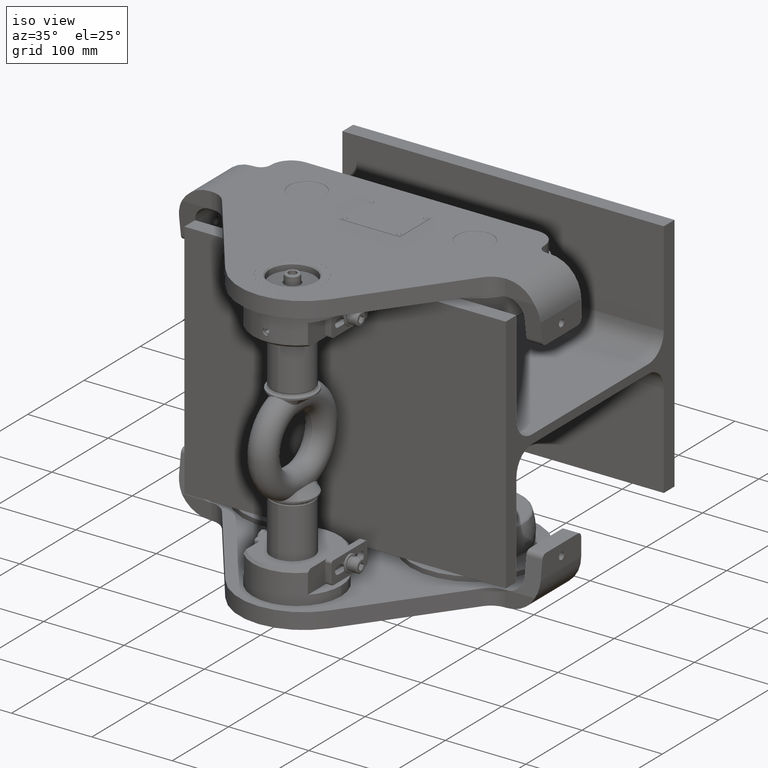
[diagram: clean part render]
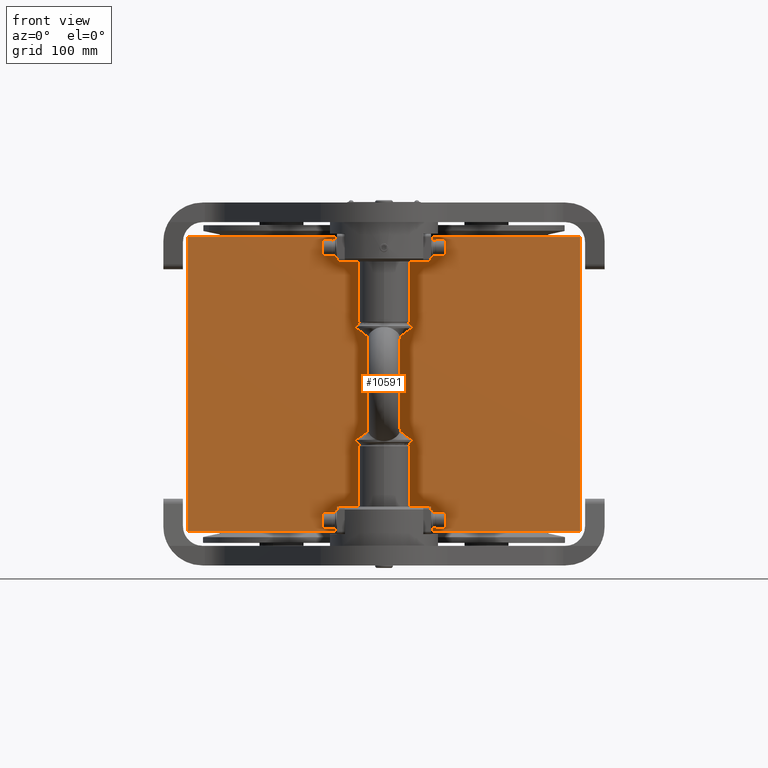
[diagram: tour spotlight — one face highlighted and labeled with its STEP entity id]
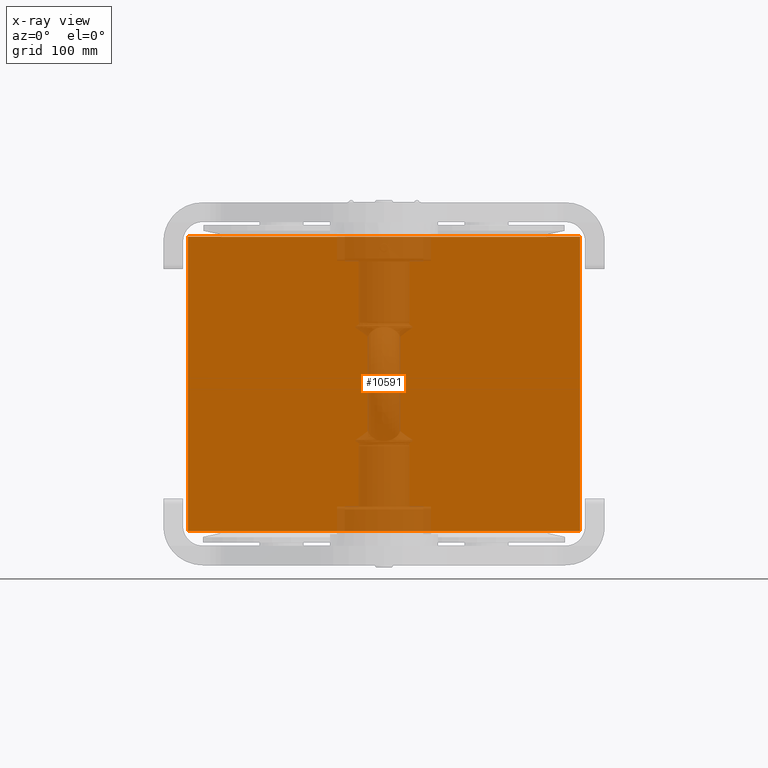
[diagram: x-ray of the same camera — body ghosted, this tour face saturated]
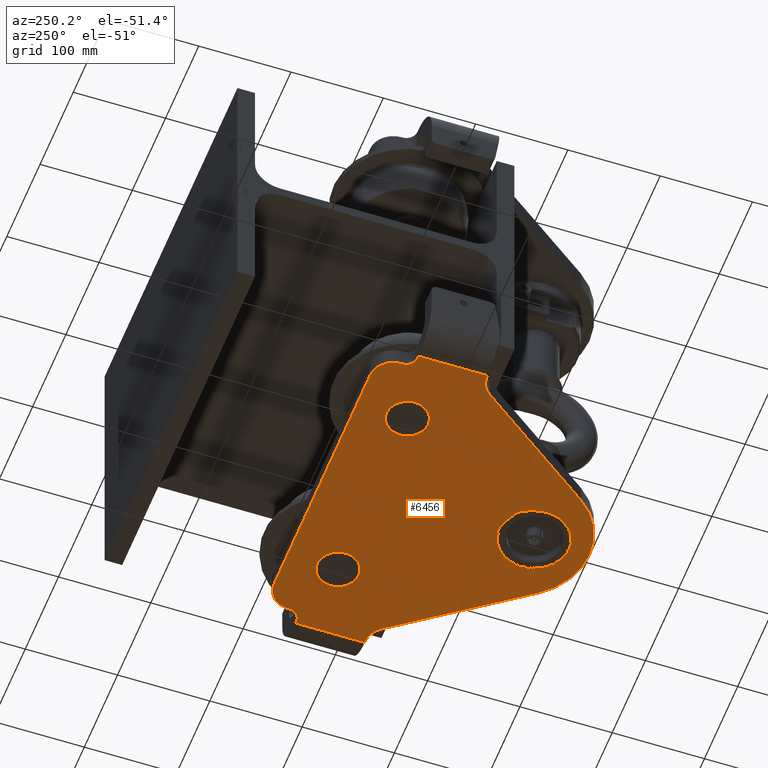
[diagram: tour spotlight — one face highlighted and labeled with its STEP entity id]
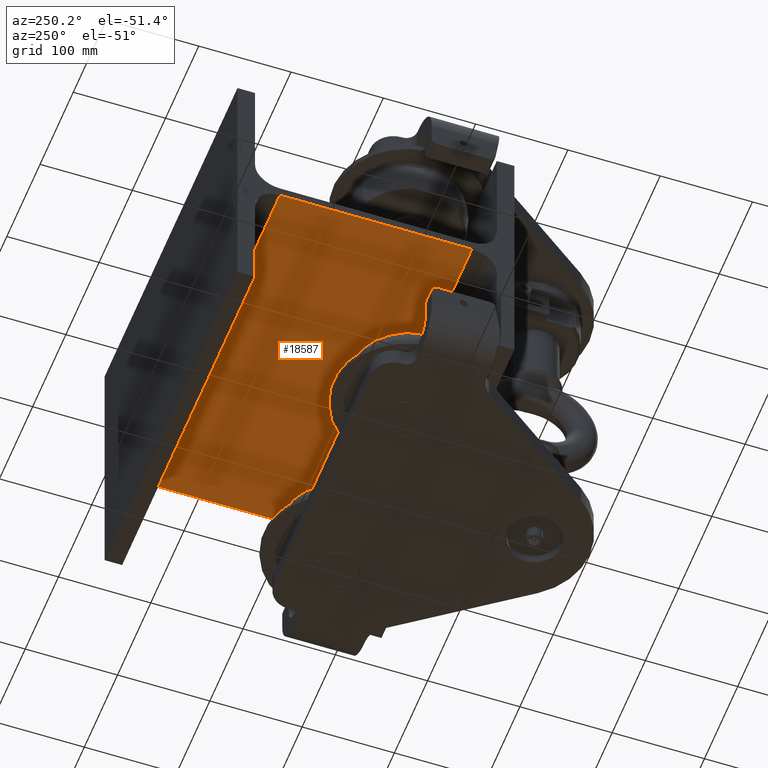
[diagram: tour spotlight — one face highlighted and labeled with its STEP entity id]
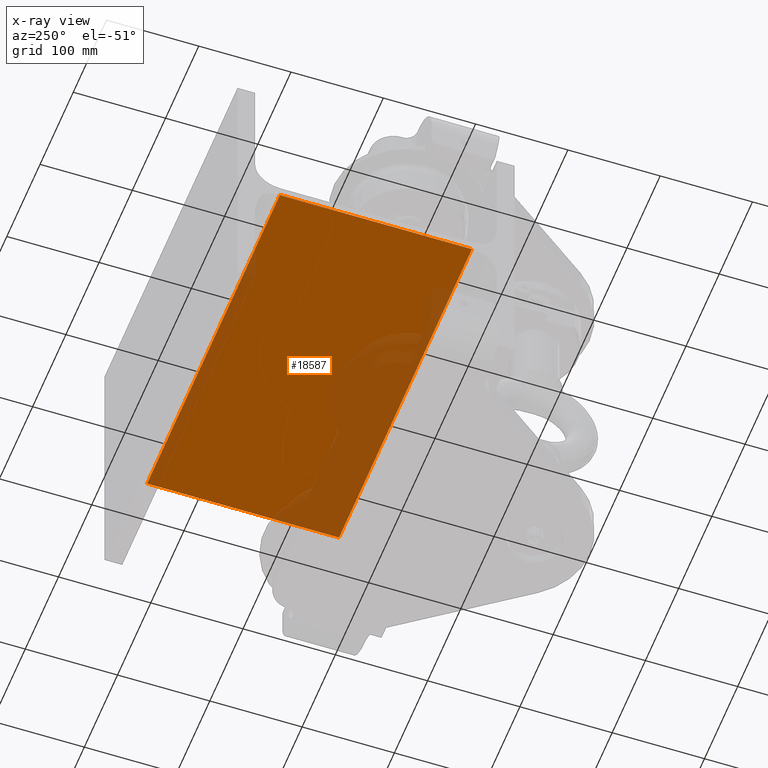
[diagram: x-ray of the same camera — body ghosted, this tour face saturated]
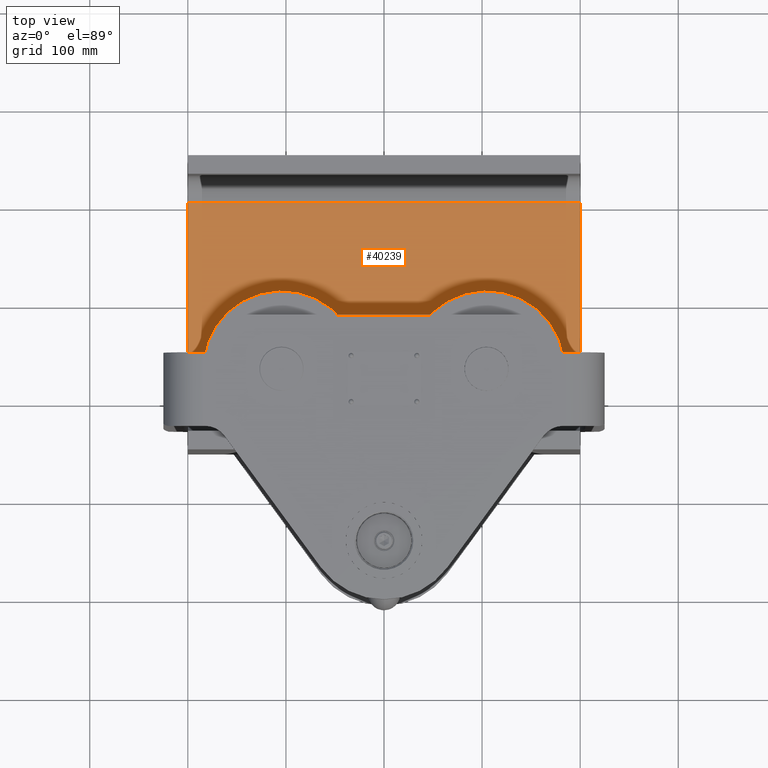
[diagram: tour spotlight — one face highlighted and labeled with its STEP entity id]
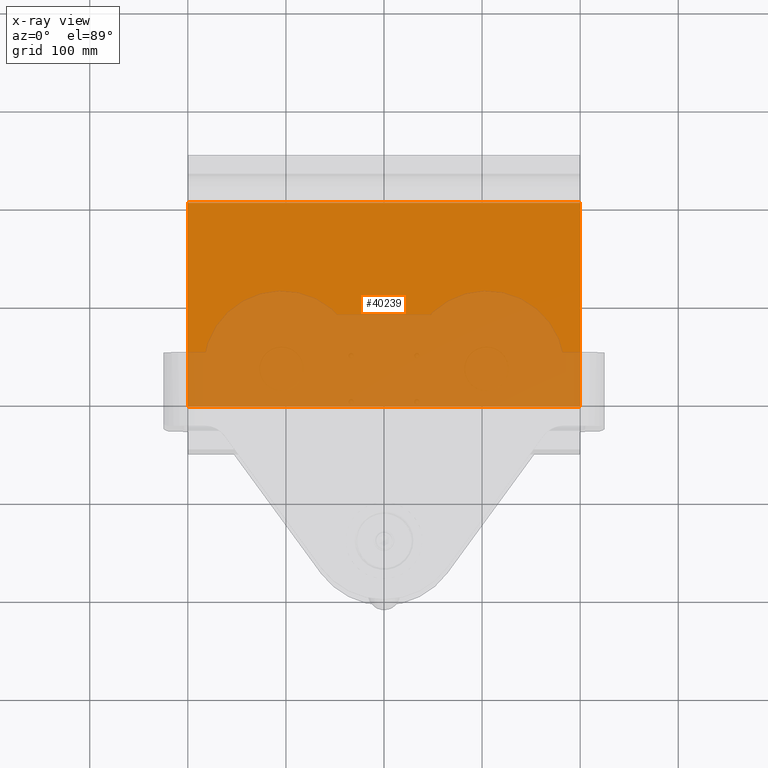
[diagram: x-ray of the same camera — body ghosted, this tour face saturated]
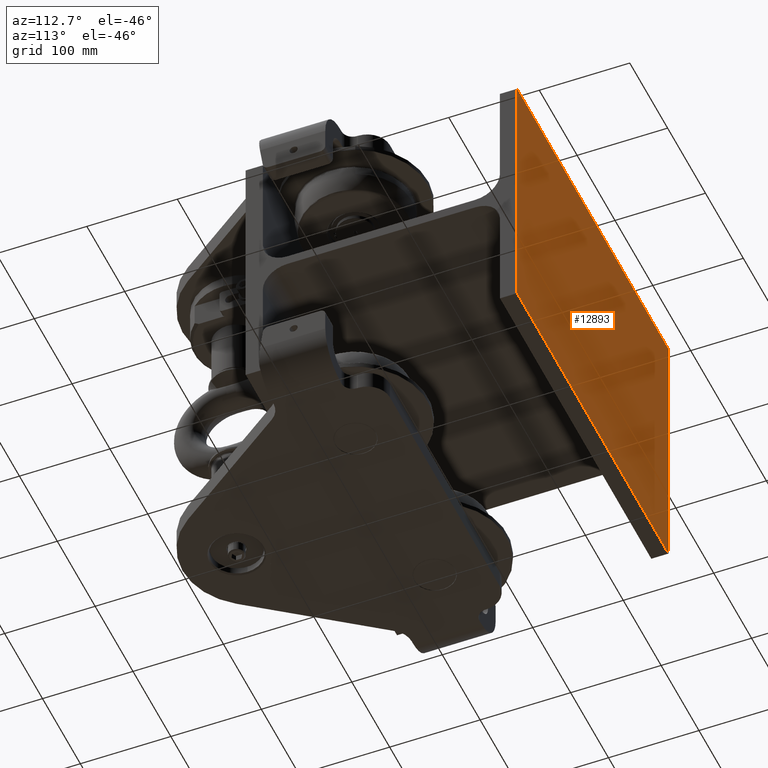
[diagram: tour spotlight — one face highlighted and labeled with its STEP entity id]
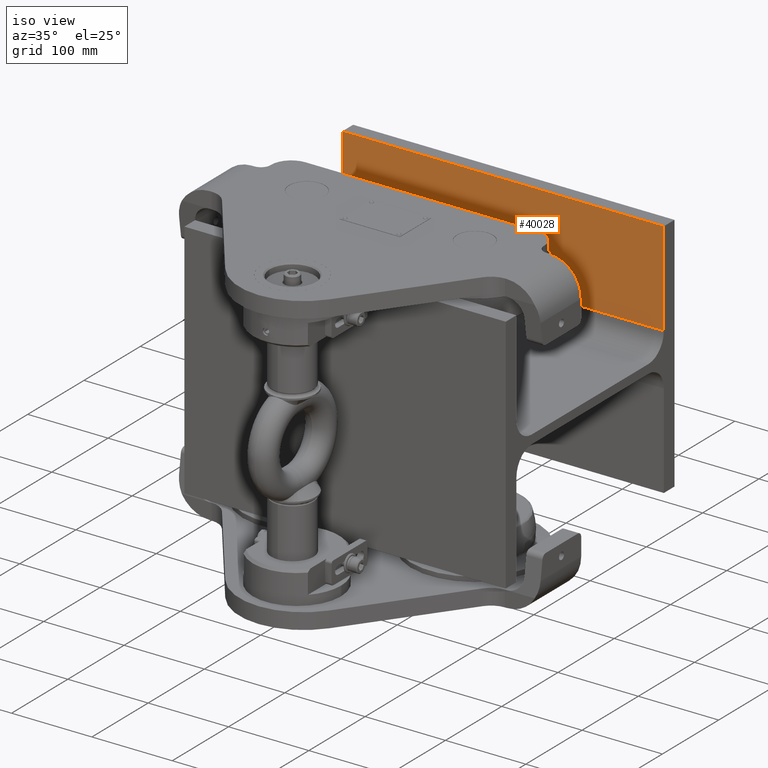
[diagram: tour spotlight — one face highlighted and labeled with its STEP entity id]
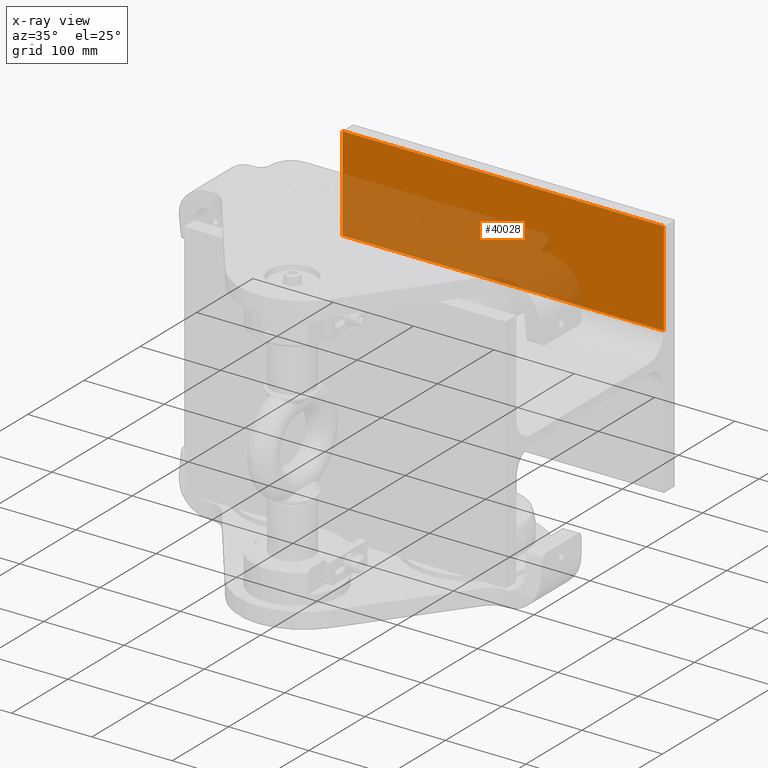
[diagram: x-ray of the same camera — body ghosted, this tour face saturated]
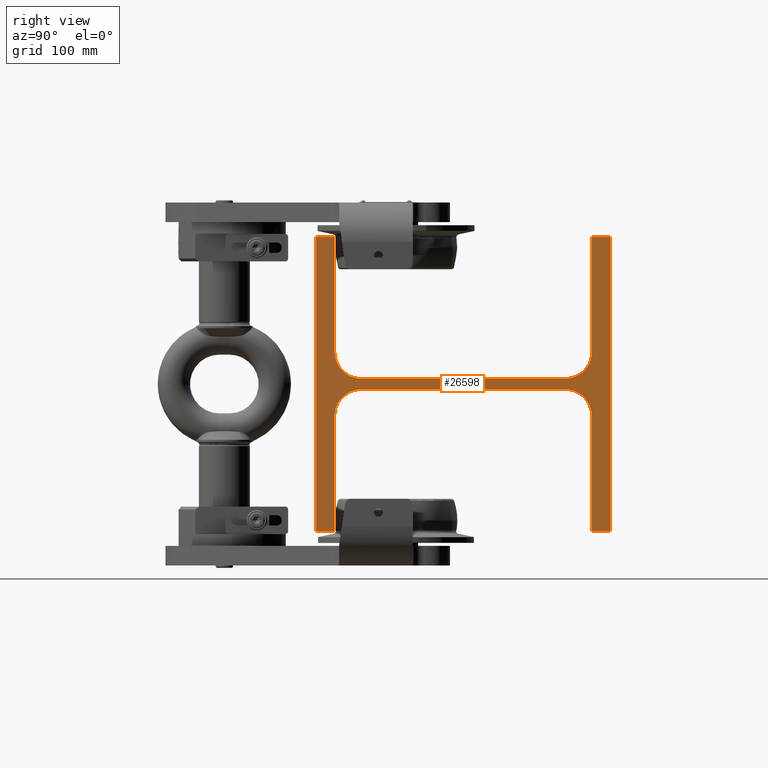
[diagram: tour spotlight — one face highlighted and labeled with its STEP entity id]
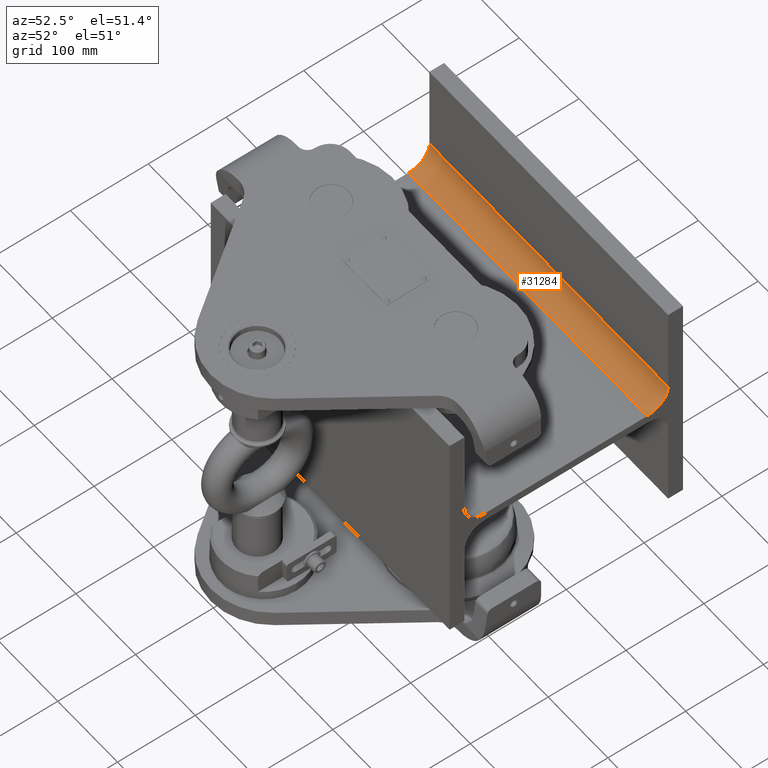
[diagram: tour spotlight — one face highlighted and labeled with its STEP entity id]
A machine part: a face-by-face anatomy tour. The part has 1200 B-rep faces; the first image is the clean iso view, then the 8 largest visible faces are spotlighted one at a time (largest first), each with its STEP entity span.

Face 1 — front view, entity #10591. An x-ray twin of the same camera follows (body ghosted, this face saturated) — the face is partly hidden behind the body. In plain terms, the highlighted planar face has unit normal (0, -1, 0).
Definition (entity closure, byte-faithful):
#1184 = CARTESIAN_POINT ( 'NONE',  ( -199.9999999999999700, -150.0000000000000000, 150.0000000000000600 ) ) ;
#4802 = VECTOR ( 'NONE', #15495, 1000.000000000000000 ) ;
#5733 = EDGE_CURVE ( 'NONE', #8998, #49530, #9923, .T. ) ;
#8998 = VERTEX_POINT ( 'NONE', #1184 ) ;
#9923 = LINE ( 'NONE', #32184, #4802 ) ;
#10591 = ADVANCED_FACE ( 'NONE', ( #18738 ), #14495, .T. ) ;
#11224 = EDGE_CURVE ( 'NONE', #12805, #37312, #23768, .T. ) ;
#12805 = VERTEX_POINT ( 'NONE', #24177 ) ;
#14495 = PLANE ( 'NONE',  #48248 ) ;
#15495 = DIRECTION ( 'NONE',  ( 1.000000000000000000, 1.110223024625156300E-016, -5.551115123125782700E-017 ) ) ;
#15897 = DIRECTION ( 'NONE',  ( 1.110223024625156400E-016, -1.000000000000000000, 2.329890535377840800E-016 ) ) ;
#17506 = EDGE_CURVE ( 'NONE', #49530, #37312, #20366, .T. ) ;
#17948 = CARTESIAN_POINT ( 'NONE',  ( 200.0000000000000300, -149.9999999999999400, 150.0000000000000300 ) ) ;
#18002 = VECTOR ( 'NONE', #48784, 1000.000000000000000 ) ;
#18738 = FACE_OUTER_BOUND ( 'NONE', #30525, .T. ) ;
#20150 = CARTESIAN_POINT ( 'NONE',  ( -199.9999999999999700, -150.0000000000001100, -149.9999999999999400 ) ) ;
#20366 = LINE ( 'NONE', #30289, #24250 ) ;
#23142 = VECTOR ( 'NONE', #51765, 1000.000000000000000 ) ;
#23768 = LINE ( 'NONE', #20150, #18002 ) ;
#24177 = CARTESIAN_POINT ( 'NONE',  ( -199.9999999999999700, -150.0000000000001100, -149.9999999999999400 ) ) ;
#24250 = VECTOR ( 'NONE', #50652, 1000.000000000000000 ) ;
#25110 = ORIENTED_EDGE ( 'NONE', *, *, #44870, .T. ) ;
#25839 = CARTESIAN_POINT ( 'NONE',  ( -199.9999999999999700, -150.0000000000000000, 150.0000000000000600 ) ) ;
#28155 = DIRECTION ( 'NONE',  ( 1.000000000000000000, 1.110223024625156300E-016, -5.551115123125782700E-017 ) ) ;
#29883 = ORIENTED_EDGE ( 'NONE', *, *, #5733, .F. ) ;
#30289 = CARTESIAN_POINT ( 'NONE',  ( 200.0000000000000300, -149.9999999999999400, 150.0000000000000300 ) ) ;
#30525 = EDGE_LOOP ( 'NONE', ( #30735, #29883, #25110, #35399 ) ) ;
#30735 = ORIENTED_EDGE ( 'NONE', *, *, #17506, .F. ) ;
#32184 = CARTESIAN_POINT ( 'NONE',  ( -199.9999999999999700, -150.0000000000000000, 150.0000000000000600 ) ) ;
#32211 = CARTESIAN_POINT ( 'NONE',  ( -199.9999999999999700, -150.0000000000000000, 150.0000000000000600 ) ) ;
#33940 = LINE ( 'NONE', #25839, #23142 ) ;
#35399 = ORIENTED_EDGE ( 'NONE', *, *, #11224, .T. ) ;
#36827 = CARTESIAN_POINT ( 'NONE',  ( 200.0000000000000300, -150.0000000000000600, -149.9999999999999700 ) ) ;
#37312 = VERTEX_POINT ( 'NONE', #36827 ) ;
#44870 = EDGE_CURVE ( 'NONE', #8998, #12805, #33940, .T. ) ;
#48248 = AXIS2_PLACEMENT_3D ( 'NONE', #32211, #15897, #28155 ) ;
#48784 = DIRECTION ( 'NONE',  ( 1.000000000000000000, 1.110223024625156300E-016, -5.551115123125782700E-017 ) ) ;
#49530 = VERTEX_POINT ( 'NONE', #17948 ) ;
#50652 = DIRECTION ( 'NONE',  ( -8.517613539294333000E-018, -2.179890634030890900E-016, -1.000000000000000000 ) ) ;
#51765 = DIRECTION ( 'NONE',  ( -8.517613539294333000E-018, -2.179890634030890900E-016, -1.000000000000000000 ) ) ;

Face 2 — auxiliary view, entity #6456. In plain terms, the highlighted planar face has unit normal (-0, 0, -1).
Definition (entity closure, byte-faithful):
#345 = CARTESIAN_POINT ( 'NONE',  ( -2.300539975363998500E-016, -243.5000000000000600, -184.9999999999999100 ) ) ;
#595 = CARTESIAN_POINT ( 'NONE',  ( 104.5000000000000300, -91.00000000000007100, -184.9999999999999400 ) ) ;
#782 = ORIENTED_EDGE ( 'NONE', *, *, #30836, .F. ) ;
#832 = CARTESIAN_POINT ( 'NONE',  ( -145.0000000000000600, -38.50000000000001400, -184.9999999999999100 ) ) ;
#2429 = CIRCLE ( 'NONE', #40806, 25.00000000000000000 ) ;
#2460 = VECTOR ( 'NONE', #29232, 1000.000000000000000 ) ;
#2991 = DIRECTION ( 'NONE',  ( 0.0000000000000000000, -1.000000000000000000, 0.0000000000000000000 ) ) ;
#3377 = CIRCLE ( 'NONE', #25357, 37.50000000000000700 ) ;
#3511 = VECTOR ( 'NONE', #50730, 1000.000000000000000 ) ;
#4059 = CIRCLE ( 'NONE', #42151, 80.00000000000001400 ) ;
#4185 = DIRECTION ( 'NONE',  ( 0.0000000000000000000, 1.000000000000000000, 0.0000000000000000000 ) ) ;
#4392 = VERTEX_POINT ( 'NONE', #595 ) ;
#4623 = CARTESIAN_POINT ( 'NONE',  ( 170.0000000000000300, -38.50000000000000700, -184.9999999999999400 ) ) ;
#4641 = AXIS2_PLACEMENT_3D ( 'NONE', #30643, #5966, #40231 ) ;
#4774 = ORIENTED_EDGE ( 'NONE', *, *, #47511, .T. ) ;
#5538 = DIRECTION ( 'NONE',  ( -5.551115123125781500E-017, 0.0000000000000000000, -1.000000000000000000 ) ) ;
#5654 = EDGE_CURVE ( 'NONE', #45468, #20040, #23542, .T. ) ;
#5695 = ORIENTED_EDGE ( 'NONE', *, *, #20572, .T. ) ;
#5966 = DIRECTION ( 'NONE',  ( 5.551115123125781500E-017, -0.0000000000000000000, 1.000000000000000000 ) ) ;
#6456 = ADVANCED_FACE ( 'NONE', ( #39894, #9670, #9034, #40537 ), #22690, .T. ) ;
#6646 = ORIENTED_EDGE ( 'NONE', *, *, #35294, .T. ) ;
#7069 = CARTESIAN_POINT ( 'NONE',  ( 64.58471424461944800, -270.7103239338690600, -184.9999999999999400 ) ) ;
#7290 = CARTESIAN_POINT ( 'NONE',  ( 145.0000000000000600, -13.50000000000001200, -184.9999999999999400 ) ) ;
#7348 = ORIENTED_EDGE ( 'NONE', *, *, #33272, .T. ) ;
#7558 = AXIS2_PLACEMENT_3D ( 'NONE', #47455, #18818, #22996 ) ;
#7564 = ORIENTED_EDGE ( 'NONE', *, *, #30927, .T. ) ;
#7774 = AXIS2_PLACEMENT_3D ( 'NONE', #34712, #30832, #14606 ) ;
#7968 = VECTOR ( 'NONE', #16270, 1000.000000000000000 ) ;
#8115 = CARTESIAN_POINT ( 'NONE',  ( -170.0000000000000300, -38.50000000000001400, -184.9999999999999100 ) ) ;
#8436 = DIRECTION ( 'NONE',  ( 0.0000000000000000000, 1.000000000000000000, 0.0000000000000000000 ) ) ;
#8483 = ORIENTED_EDGE ( 'NONE', *, *, #15065, .T. ) ;
#8938 = VERTEX_POINT ( 'NONE', #45085 ) ;
#8959 = CIRCLE ( 'NONE', #9070, 22.49999999999999300 ) ;
#9034 = FACE_BOUND ( 'NONE', #25869, .T. ) ;
#9070 = AXIS2_PLACEMENT_3D ( 'NONE', #46247, #42433, #38598 ) ;
#9569 = EDGE_CURVE ( 'NONE', #27936, #32000, #3377, .T. ) ;
#9670 = FACE_BOUND ( 'NONE', #28527, .T. ) ;
#10168 = DIRECTION ( 'NONE',  ( -5.551115123125781500E-017, 0.0000000000000000000, -1.000000000000000000 ) ) ;
#10180 = DIRECTION ( 'NONE',  ( 5.551115123125781500E-017, -0.0000000000000000000, 1.000000000000000000 ) ) ;
#10702 = VECTOR ( 'NONE', #10931, 1000.000000000000000 ) ;
#10788 = CARTESIAN_POINT ( 'NONE',  ( -185.0000000000000300, -13.50000000000001200, -184.9999999999999100 ) ) ;
#10822 = VECTOR ( 'NONE', #33365, 1000.000000000000000 ) ;
#10931 = DIRECTION ( 'NONE',  ( 1.000000000000000000, -9.682177540335668900E-016, -5.551115123125781500E-017 ) ) ;
#11205 = DIRECTION ( 'NONE',  ( -5.551115123125781500E-017, 0.0000000000000000000, -1.000000000000000000 ) ) ;
#11567 = LINE ( 'NONE', #10788, #16127 ) ;
#12002 = EDGE_CURVE ( 'NONE', #30111, #26986, #2429, .T. ) ;
#12455 = AXIS2_PLACEMENT_3D ( 'NONE', #345, #29496, #32679 ) ;
#12784 = EDGE_CURVE ( 'NONE', #33902, #16100, #41927, .T. ) ;
#13261 = VERTEX_POINT ( 'NONE', #35754 ) ;
#14485 = LINE ( 'NONE', #35139, #3511 ) ;
#14583 = DIRECTION ( 'NONE',  ( -5.551115123125781500E-017, 0.0000000000000000000, -1.000000000000000000 ) ) ;
#14606 = DIRECTION ( 'NONE',  ( 0.0000000000000000000, 1.000000000000000000, 0.0000000000000000000 ) ) ;
#14744 = EDGE_CURVE ( 'NONE', #41833, #8938, #19349, .T. ) ;
#14749 = LINE ( 'NONE', #44416, #10822 ) ;
#15065 = EDGE_CURVE ( 'NONE', #52758, #45468, #14749, .T. ) ;
#15150 = DIRECTION ( 'NONE',  ( -1.000000000000000000, -0.0000000000000000000, 5.551115123125781500E-017 ) ) ;
#15718 = VERTEX_POINT ( 'NONE', #15966 ) ;
#15966 = CARTESIAN_POINT ( 'NONE',  ( 182.6925064427543100, -126.5000000000000300, -184.9999999999999400 ) ) ;
#16100 = VERTEX_POINT ( 'NONE', #36497 ) ;
#16127 = VECTOR ( 'NONE', #15150, 1000.000000000000000 ) ;
#16231 = DIRECTION ( 'NONE',  ( 5.551115123125781500E-017, -0.0000000000000000000, 1.000000000000000000 ) ) ;
#16270 = DIRECTION ( 'NONE',  ( 0.0000000000000000000, 1.000000000000000000, 0.0000000000000000000 ) ) ;
#16310 = VERTEX_POINT ( 'NONE', #21974 ) ;
#16854 = CARTESIAN_POINT ( 'NONE',  ( -170.0000000000000300, -39.50000000000002100, -184.9999999999999100 ) ) ;
#16862 = ORIENTED_EDGE ( 'NONE', *, *, #12002, .T. ) ;
#17393 = DIRECTION ( 'NONE',  ( -5.551115123125781500E-017, 0.0000000000000000000, -1.000000000000000000 ) ) ;
#17785 = VERTEX_POINT ( 'NONE', #26532 ) ;
#17899 = DIRECTION ( 'NONE',  ( -5.551115123125781500E-017, 0.0000000000000000000, -1.000000000000000000 ) ) ;
#17945 = ORIENTED_EDGE ( 'NONE', *, *, #28064, .F. ) ;
#18095 = VERTEX_POINT ( 'NONE', #50946 ) ;
#18239 = ORIENTED_EDGE ( 'NONE', *, *, #25781, .F. ) ;
#18272 = DIRECTION ( 'NONE',  ( -0.5901290491733639500, 0.8073089280577425700, 3.275874289462098700E-017 ) ) ;
#18749 = LINE ( 'NONE', #44275, #25817 ) ;
#18818 = DIRECTION ( 'NONE',  ( -5.551115123125781500E-017, 0.0000000000000000000, -1.000000000000000000 ) ) ;
#19009 = LINE ( 'NONE', #8115, #7968 ) ;
#19280 = DIRECTION ( 'NONE',  ( 0.0000000000000000000, -1.000000000000000000, 0.0000000000000000000 ) ) ;
#19349 = CIRCLE ( 'NONE', #24337, 11.99999999999998900 ) ;
#19459 = DIRECTION ( 'NONE',  ( 0.0000000000000000000, -1.000000000000000000, 0.0000000000000000000 ) ) ;
#19624 = ORIENTED_EDGE ( 'NONE', *, *, #38150, .T. ) ;
#19860 = DIRECTION ( 'NONE',  ( -0.5901290491733639500, -0.8073089280577425700, 3.275874289462098700E-017 ) ) ;
#20040 = VERTEX_POINT ( 'NONE', #16854 ) ;
#20447 = CIRCLE ( 'NONE', #39479, 22.49999999999999300 ) ;
#20572 = EDGE_CURVE ( 'NONE', #46794, #41833, #18749, .T. ) ;
#21175 = VERTEX_POINT ( 'NONE', #30928 ) ;
#21486 = AXIS2_PLACEMENT_3D ( 'NONE', #26926, #31517, #31186 ) ;
#21584 = AXIS2_PLACEMENT_3D ( 'NONE', #50944, #10168, #43155 ) ;
#21974 = CARTESIAN_POINT ( 'NONE',  ( -64.58471424461942000, -270.7103239338690600, -184.9999999999999100 ) ) ;
#22086 = VECTOR ( 'NONE', #43861, 1000.000000000000000 ) ;
#22298 = AXIS2_PLACEMENT_3D ( 'NONE', #26626, #10180, #43166 ) ;
#22690 = PLANE ( 'NONE',  #21584 ) ;
#22996 = DIRECTION ( 'NONE',  ( 0.0000000000000000000, 1.000000000000000000, 0.0000000000000000000 ) ) ;
#23071 = CIRCLE ( 'NONE', #24927, 25.00000000000000000 ) ;
#23225 = CARTESIAN_POINT ( 'NONE',  ( 185.0000000000000600, -303.5000000000000000, -184.9999999999999400 ) ) ;
#23447 = CARTESIAN_POINT ( 'NONE',  ( 104.5000000000000300, -46.00000000000005700, -184.9999999999999400 ) ) ;
#23542 = CIRCLE ( 'NONE', #21486, 11.99999999999998900 ) ;
#24337 = AXIS2_PLACEMENT_3D ( 'NONE', #36866, #16231, #8436 ) ;
#24927 = AXIS2_PLACEMENT_3D ( 'NONE', #36394, #11205, #2991 ) ;
#25102 = CARTESIAN_POINT ( 'NONE',  ( 182.6925064427543100, -126.5000000000000300, -184.9999999999999400 ) ) ;
#25357 = AXIS2_PLACEMENT_3D ( 'NONE', #42339, #17899, #4185 ) ;
#25781 = EDGE_CURVE ( 'NONE', #13261, #21175, #20447, .T. ) ;
#25817 = VECTOR ( 'NONE', #19459, 1000.000000000000000 ) ;
#25869 = EDGE_LOOP ( 'NONE', ( #35561, #18239 ) ) ;
#26532 = CARTESIAN_POINT ( 'NONE',  ( -162.5097832413107100, -136.7467737706659000, -184.9999999999999100 ) ) ;
#26626 = CARTESIAN_POINT ( 'NONE',  ( -182.6925064427542800, -151.5000000000000300, -184.9999999999999100 ) ) ;
#26926 = CARTESIAN_POINT ( 'NONE',  ( -182.0000000000000600, -39.50000000000002100, -184.9999999999999100 ) ) ;
#26986 = VERTEX_POINT ( 'NONE', #49914 ) ;
#27358 = VERTEX_POINT ( 'NONE', #23447 ) ;
#27811 = ORIENTED_EDGE ( 'NONE', *, *, #5654, .T. ) ;
#27936 = VERTEX_POINT ( 'NONE', #30500 ) ;
#28064 = EDGE_CURVE ( 'NONE', #27358, #4392, #46095, .T. ) ;
#28161 = CARTESIAN_POINT ( 'NONE',  ( -185.0000000000000300, -126.5000000000000000, -184.9999999999999100 ) ) ;
#28527 = EDGE_LOOP ( 'NONE', ( #782, #17945 ) ) ;
#29232 = DIRECTION ( 'NONE',  ( -1.000000000000000000, -0.0000000000000000000, 5.551115123125781500E-017 ) ) ;
#29496 = DIRECTION ( 'NONE',  ( -5.551115123125781500E-017, 0.0000000000000000000, -1.000000000000000000 ) ) ;
#29539 = VECTOR ( 'NONE', #41734, 1000.000000000000000 ) ;
#30111 = VERTEX_POINT ( 'NONE', #46284 ) ;
#30208 = CARTESIAN_POINT ( 'NONE',  ( 185.0000000000000600, -51.49999999999999300, -184.9999999999999400 ) ) ;
#30387 = CARTESIAN_POINT ( 'NONE',  ( -104.5000000000000300, -68.50000000000002800, -184.9999999999999100 ) ) ;
#30486 = CARTESIAN_POINT ( 'NONE',  ( -162.5097832413107100, -136.7467737706659000, -184.9999999999999100 ) ) ;
#30500 = CARTESIAN_POINT ( 'NONE',  ( -2.300539975363998500E-016, -206.0000000000000600, -184.9999999999999100 ) ) ;
#30643 = CARTESIAN_POINT ( 'NONE',  ( 182.6925064427542800, -151.5000000000000300, -184.9999999999999400 ) ) ;
#30832 = DIRECTION ( 'NONE',  ( -5.551115123125781500E-017, 0.0000000000000000000, -1.000000000000000000 ) ) ;
#30836 = EDGE_CURVE ( 'NONE', #4392, #27358, #36763, .T. ) ;
#30927 = EDGE_CURVE ( 'NONE', #15718, #33902, #41735, .T. ) ;
#30928 = CARTESIAN_POINT ( 'NONE',  ( -104.5000000000000300, -91.00000000000002800, -184.9999999999999100 ) ) ;
#31089 = LINE ( 'NONE', #23225, #22086 ) ;
#31186 = DIRECTION ( 'NONE',  ( 0.0000000000000000000, 1.000000000000000000, 0.0000000000000000000 ) ) ;
#31517 = DIRECTION ( 'NONE',  ( 5.551115123125781500E-017, -0.0000000000000000000, 1.000000000000000000 ) ) ;
#31674 = VERTEX_POINT ( 'NONE', #28161 ) ;
#31700 = CIRCLE ( 'NONE', #12455, 37.50000000000000700 ) ;
#32000 = VERTEX_POINT ( 'NONE', #52972 ) ;
#32089 = EDGE_CURVE ( 'NONE', #20040, #30111, #19009, .T. ) ;
#32472 = CARTESIAN_POINT ( 'NONE',  ( -185.0000000000000300, -51.49999999999999300, -184.9999999999999100 ) ) ;
#32679 = DIRECTION ( 'NONE',  ( 0.0000000000000000000, 1.000000000000000000, 0.0000000000000000000 ) ) ;
#33046 = ORIENTED_EDGE ( 'NONE', *, *, #40095, .F. ) ;
#33087 = CARTESIAN_POINT ( 'NONE',  ( -182.6925064427542800, -126.5000000000000000, -184.9999999999999100 ) ) ;
#33272 = EDGE_CURVE ( 'NONE', #31674, #52758, #14485, .T. ) ;
#33365 = DIRECTION ( 'NONE',  ( 1.000000000000000000, -3.227392513445223300E-016, -5.551115123125781500E-017 ) ) ;
#33650 = DIRECTION ( 'NONE',  ( 0.0000000000000000000, -1.000000000000000000, 0.0000000000000000000 ) ) ;
#33902 = VERTEX_POINT ( 'NONE', #45512 ) ;
#34258 = DIRECTION ( 'NONE',  ( 0.0000000000000000000, 1.000000000000000000, 0.0000000000000000000 ) ) ;
#34712 = CARTESIAN_POINT ( 'NONE',  ( 104.5000000000000300, -68.50000000000005700, -184.9999999999999400 ) ) ;
#35139 = CARTESIAN_POINT ( 'NONE',  ( -185.0000000000000300, -303.5000000000000000, -184.9999999999999100 ) ) ;
#35294 = EDGE_CURVE ( 'NONE', #17785, #51352, #51554, .T. ) ;
#35345 = EDGE_CURVE ( 'NONE', #18095, #44240, #31089, .T. ) ;
#35501 = ORIENTED_EDGE ( 'NONE', *, *, #42470, .T. ) ;
#35561 = ORIENTED_EDGE ( 'NONE', *, *, #44211, .F. ) ;
#35571 = CARTESIAN_POINT ( 'NONE',  ( 225.0000000000000600, -51.50000000000002800, -184.9999999999999400 ) ) ;
#35754 = CARTESIAN_POINT ( 'NONE',  ( -104.5000000000000300, -46.00000000000004300, -184.9999999999999100 ) ) ;
#36394 = CARTESIAN_POINT ( 'NONE',  ( 145.0000000000000600, -38.50000000000001400, -184.9999999999999400 ) ) ;
#36446 = EDGE_CURVE ( 'NONE', #16100, #16310, #4059, .T. ) ;
#36497 = CARTESIAN_POINT ( 'NONE',  ( 64.58471424461946200, -270.7103239338690600, -184.9999999999999400 ) ) ;
#36510 = CARTESIAN_POINT ( 'NONE',  ( 170.0000000000000600, -39.50000000000002800, -184.9999999999999400 ) ) ;
#36763 = CIRCLE ( 'NONE', #7774, 22.50000000000000700 ) ;
#36866 = CARTESIAN_POINT ( 'NONE',  ( 182.0000000000000600, -39.50000000000002100, -184.9999999999999400 ) ) ;
#38150 = EDGE_CURVE ( 'NONE', #8938, #44240, #44727, .T. ) ;
#38598 = DIRECTION ( 'NONE',  ( 0.0000000000000000000, 1.000000000000000000, 0.0000000000000000000 ) ) ;
#38715 = EDGE_CURVE ( 'NONE', #39735, #46794, #23071, .T. ) ;
#39479 = AXIS2_PLACEMENT_3D ( 'NONE', #30387, #5538, #34258 ) ;
#39735 = VERTEX_POINT ( 'NONE', #7290 ) ;
#39894 = FACE_BOUND ( 'NONE', #52001, .T. ) ;
#39962 = ORIENTED_EDGE ( 'NONE', *, *, #42005, .T. ) ;
#40095 = EDGE_CURVE ( 'NONE', #39735, #26986, #11567, .T. ) ;
#40231 = DIRECTION ( 'NONE',  ( 0.0000000000000000000, 1.000000000000000000, 0.0000000000000000000 ) ) ;
#40537 = FACE_OUTER_BOUND ( 'NONE', #42282, .T. ) ;
#40720 = ORIENTED_EDGE ( 'NONE', *, *, #32089, .T. ) ;
#40806 = AXIS2_PLACEMENT_3D ( 'NONE', #832, #17393, #33650 ) ;
#41734 = DIRECTION ( 'NONE',  ( -1.000000000000000000, -0.0000000000000000000, 5.551115123125781500E-017 ) ) ;
#41735 = CIRCLE ( 'NONE', #4641, 24.99999999999999300 ) ;
#41833 = VERTEX_POINT ( 'NONE', #36510 ) ;
#41927 = LINE ( 'NONE', #7069, #51636 ) ;
#42005 = EDGE_CURVE ( 'NONE', #51352, #31674, #46800, .T. ) ;
#42151 = AXIS2_PLACEMENT_3D ( 'NONE', #47896, #14583, #19280 ) ;
#42282 = EDGE_LOOP ( 'NONE', ( #40720, #16862, #33046, #48145, #5695, #49911, #19624, #47015, #35501, #7564, #51519, #51844, #4774, #6646, #39962, #7348, #8483, #27811 ) ) ;
#42339 = CARTESIAN_POINT ( 'NONE',  ( -2.300539975363998500E-016, -243.5000000000000600, -184.9999999999999100 ) ) ;
#42433 = DIRECTION ( 'NONE',  ( -5.551115123125781500E-017, 0.0000000000000000000, -1.000000000000000000 ) ) ;
#42470 = EDGE_CURVE ( 'NONE', #18095, #15718, #51870, .T. ) ;
#43155 = DIRECTION ( 'NONE',  ( 0.0000000000000000000, 1.000000000000000000, 0.0000000000000000000 ) ) ;
#43166 = DIRECTION ( 'NONE',  ( 0.0000000000000000000, 1.000000000000000000, 0.0000000000000000000 ) ) ;
#43682 = ORIENTED_EDGE ( 'NONE', *, *, #51823, .F. ) ;
#43861 = DIRECTION ( 'NONE',  ( 0.0000000000000000000, 1.000000000000000000, 0.0000000000000000000 ) ) ;
#44211 = EDGE_CURVE ( 'NONE', #21175, #13261, #8959, .T. ) ;
#44240 = VERTEX_POINT ( 'NONE', #30208 ) ;
#44275 = CARTESIAN_POINT ( 'NONE',  ( 170.0000000000000300, -39.50000000000002100, -184.9999999999999400 ) ) ;
#44416 = CARTESIAN_POINT ( 'NONE',  ( -182.0000000000000600, -51.49999999999999300, -184.9999999999999100 ) ) ;
#44541 = LINE ( 'NONE', #30486, #45841 ) ;
#44727 = LINE ( 'NONE', #35571, #10702 ) ;
#45085 = CARTESIAN_POINT ( 'NONE',  ( 182.0000000000000600, -51.49999999999999300, -184.9999999999999400 ) ) ;
#45468 = VERTEX_POINT ( 'NONE', #47372 ) ;
#45512 = CARTESIAN_POINT ( 'NONE',  ( 162.5097832413107400, -136.7467737706659000, -184.9999999999999400 ) ) ;
#45841 = VECTOR ( 'NONE', #18272, 1000.000000000000000 ) ;
#46095 = CIRCLE ( 'NONE', #7558, 22.50000000000000700 ) ;
#46247 = CARTESIAN_POINT ( 'NONE',  ( -104.5000000000000300, -68.50000000000002800, -184.9999999999999100 ) ) ;
#46284 = CARTESIAN_POINT ( 'NONE',  ( -170.0000000000000300, -38.50000000000000700, -184.9999999999999100 ) ) ;
#46794 = VERTEX_POINT ( 'NONE', #4623 ) ;
#46800 = LINE ( 'NONE', #49873, #29539 ) ;
#47015 = ORIENTED_EDGE ( 'NONE', *, *, #35345, .F. ) ;
#47372 = CARTESIAN_POINT ( 'NONE',  ( -182.0000000000000600, -51.50000000000001400, -184.9999999999999100 ) ) ;
#47455 = CARTESIAN_POINT ( 'NONE',  ( 104.5000000000000300, -68.50000000000005700, -184.9999999999999400 ) ) ;
#47511 = EDGE_CURVE ( 'NONE', #16310, #17785, #44541, .T. ) ;
#47896 = CARTESIAN_POINT ( 'NONE',  ( 1.655459168968589600E-014, -223.4999999999999700, -184.9999999999999100 ) ) ;
#48145 = ORIENTED_EDGE ( 'NONE', *, *, #38715, .T. ) ;
#49240 = ORIENTED_EDGE ( 'NONE', *, *, #9569, .F. ) ;
#49873 = CARTESIAN_POINT ( 'NONE',  ( -225.0000000000000600, -126.5000000000000000, -184.9999999999999100 ) ) ;
#49911 = ORIENTED_EDGE ( 'NONE', *, *, #14744, .T. ) ;
#49914 = CARTESIAN_POINT ( 'NONE',  ( -145.0000000000000600, -13.50000000000001200, -184.9999999999999100 ) ) ;
#50730 = DIRECTION ( 'NONE',  ( 0.0000000000000000000, 1.000000000000000000, 0.0000000000000000000 ) ) ;
#50944 = CARTESIAN_POINT ( 'NONE',  ( -185.0000000000000300, -303.5000000000000000, -184.9999999999999100 ) ) ;
#50946 = CARTESIAN_POINT ( 'NONE',  ( 185.0000000000000600, -126.5000000000000300, -184.9999999999999400 ) ) ;
#51352 = VERTEX_POINT ( 'NONE', #33087 ) ;
#51519 = ORIENTED_EDGE ( 'NONE', *, *, #12784, .T. ) ;
#51554 = CIRCLE ( 'NONE', #22298, 25.00000000000002100 ) ;
#51636 = VECTOR ( 'NONE', #19860, 1000.000000000000000 ) ;
#51823 = EDGE_CURVE ( 'NONE', #32000, #27936, #31700, .T. ) ;
#51844 = ORIENTED_EDGE ( 'NONE', *, *, #36446, .T. ) ;
#51870 = LINE ( 'NONE', #25102, #2460 ) ;
#52001 = EDGE_LOOP ( 'NONE', ( #49240, #43682 ) ) ;
#52758 = VERTEX_POINT ( 'NONE', #32472 ) ;
#52972 = CARTESIAN_POINT ( 'NONE',  ( 4.917483011578755800E-015, -281.0000000000000000, -184.9999999999999100 ) ) ;

Face 3 — auxiliary view, entity #18587. An x-ray twin of the same camera follows (body ghosted, this face saturated) — the face is partly hidden behind the body. In plain terms, the highlighted planar face has unit normal (0, 0, 1).
Definition (entity closure, byte-faithful):
#3208 = LINE ( 'NONE', #48983, #22599 ) ;
#5077 = CARTESIAN_POINT ( 'NONE',  ( -199.9999999999999700, 103.9999999999998400, -5.499999999999989300 ) ) ;
#5860 = CARTESIAN_POINT ( 'NONE',  ( -199.9999999999999700, 103.9999999999998400, -5.499999999999989300 ) ) ;
#5947 = CARTESIAN_POINT ( 'NONE',  ( -199.9999999999999700, -103.9999999999999600, -5.499999999999975100 ) ) ;
#6920 = CARTESIAN_POINT ( 'NONE',  ( -199.9999999999999700, -103.9999999999999600, -5.499999999999975100 ) ) ;
#7033 = DIRECTION ( 'NONE',  ( -1.000000000000000000, -1.110223024625156300E-016, 5.551115123125782700E-017 ) ) ;
#7090 = EDGE_CURVE ( 'NONE', #42689, #15887, #14031, .T. ) ;
#7686 = CARTESIAN_POINT ( 'NONE',  ( -199.9999999999999700, 103.9999999999998400, -5.500000000000024000 ) ) ;
#10550 = EDGE_CURVE ( 'NONE', #15887, #20082, #37937, .T. ) ;
#12239 = LINE ( 'NONE', #5860, #49459 ) ;
#14031 = LINE ( 'NONE', #7686, #28255 ) ;
#14272 = EDGE_CURVE ( 'NONE', #42689, #14660, #12239, .T. ) ;
#14660 = VERTEX_POINT ( 'NONE', #35992 ) ;
#14794 = EDGE_CURVE ( 'NONE', #14660, #20082, #3208, .T. ) ;
#15151 = ORIENTED_EDGE ( 'NONE', *, *, #14794, .T. ) ;
#15426 = VECTOR ( 'NONE', #26767, 1000.000000000000000 ) ;
#15887 = VERTEX_POINT ( 'NONE', #5947 ) ;
#18587 = ADVANCED_FACE ( 'NONE', ( #34183 ), #31831, .F. ) ;
#19461 = DIRECTION ( 'NONE',  ( 5.551115123125780200E-017, 2.179890634030890900E-016, 1.000000000000000000 ) ) ;
#20082 = VERTEX_POINT ( 'NONE', #45299 ) ;
#22460 = ORIENTED_EDGE ( 'NONE', *, *, #7090, .F. ) ;
#22599 = VECTOR ( 'NONE', #37197, 1000.000000000000000 ) ;
#22662 = DIRECTION ( 'NONE',  ( 1.000000000000000000, 1.110223024625156300E-016, -5.551115123125782700E-017 ) ) ;
#26634 = AXIS2_PLACEMENT_3D ( 'NONE', #52039, #19461, #7033 ) ;
#26767 = DIRECTION ( 'NONE',  ( 1.000000000000000000, 1.110223024625156300E-016, -5.551115123125782700E-017 ) ) ;
#28255 = VECTOR ( 'NONE', #48571, 1000.000000000000000 ) ;
#31831 = PLANE ( 'NONE',  #26634 ) ;
#34183 = FACE_OUTER_BOUND ( 'NONE', #41022, .T. ) ;
#35607 = ORIENTED_EDGE ( 'NONE', *, *, #14272, .T. ) ;
#35992 = CARTESIAN_POINT ( 'NONE',  ( 200.0000000000000300, 103.9999999999999000, -5.500000000000011500 ) ) ;
#37197 = DIRECTION ( 'NONE',  ( 0.0000000000000000000, -1.000000000000000000, 2.329890535377840800E-016 ) ) ;
#37790 = ORIENTED_EDGE ( 'NONE', *, *, #10550, .F. ) ;
#37937 = LINE ( 'NONE', #6920, #15426 ) ;
#41022 = EDGE_LOOP ( 'NONE', ( #15151, #37790, #22460, #35607 ) ) ;
#42689 = VERTEX_POINT ( 'NONE', #5077 ) ;
#45299 = CARTESIAN_POINT ( 'NONE',  ( 200.0000000000000300, -103.9999999999999000, -5.499999999999998200 ) ) ;
#48571 = DIRECTION ( 'NONE',  ( 0.0000000000000000000, -1.000000000000000000, 2.329890535377840800E-016 ) ) ;
#48983 = CARTESIAN_POINT ( 'NONE',  ( 200.0000000000000300, 103.9999999999999000, -5.500000000000046200 ) ) ;
#49459 = VECTOR ( 'NONE', #22662, 1000.000000000000000 ) ;
#52039 = CARTESIAN_POINT ( 'NONE',  ( -199.9999999999999700, 103.9999999999998400, -5.500000000000024000 ) ) ;

Face 4 — top view, entity #40239. An x-ray twin of the same camera follows (body ghosted, this face saturated) — the face is partly hidden behind the body. In plain terms, the highlighted planar face has unit normal (0, 0, 1).
Definition (entity closure, byte-faithful):
#2644 = VECTOR ( 'NONE', #25852, 1000.000000000000000 ) ;
#3528 = VERTEX_POINT ( 'NONE', #42250 ) ;
#10182 = DIRECTION ( 'NONE',  ( 1.000000000000000000, 1.110223024625156300E-016, -5.551115123125782700E-017 ) ) ;
#11123 = DIRECTION ( 'NONE',  ( -1.000000000000000000, -1.110223024625156300E-016, 5.551115123125782700E-017 ) ) ;
#12361 = EDGE_LOOP ( 'NONE', ( #20831, #52528, #47039, #24112 ) ) ;
#15803 = LINE ( 'NONE', #19555, #24200 ) ;
#19555 = CARTESIAN_POINT ( 'NONE',  ( -199.9999999999999700, 103.9999999999999700, 5.499999999999976000 ) ) ;
#19563 = EDGE_CURVE ( 'NONE', #36314, #46822, #50231, .T. ) ;
#19904 = DIRECTION ( 'NONE',  ( 1.000000000000000000, 1.110223024625156300E-016, -5.551115123125782700E-017 ) ) ;
#20831 = ORIENTED_EDGE ( 'NONE', *, *, #49624, .F. ) ;
#21722 = CARTESIAN_POINT ( 'NONE',  ( 200.0000000000000300, 104.0000000000000100, 5.499999999999953800 ) ) ;
#22757 = CARTESIAN_POINT ( 'NONE',  ( -199.9999999999999700, 103.9999999999999700, 5.499999999999976000 ) ) ;
#24112 = ORIENTED_EDGE ( 'NONE', *, *, #19563, .T. ) ;
#24200 = VECTOR ( 'NONE', #19904, 1000.000000000000000 ) ;
#25852 = DIRECTION ( 'NONE',  ( 0.0000000000000000000, -1.000000000000000000, 2.329890535377840800E-016 ) ) ;
#25888 = CARTESIAN_POINT ( 'NONE',  ( 200.0000000000000300, -103.9999999999998400, 5.499999999999998200 ) ) ;
#26197 = AXIS2_PLACEMENT_3D ( 'NONE', #48090, #52581, #11123 ) ;
#28332 = LINE ( 'NONE', #22757, #44882 ) ;
#29076 = EDGE_CURVE ( 'NONE', #37569, #36314, #28332, .T. ) ;
#34382 = EDGE_CURVE ( 'NONE', #37569, #3528, #15803, .T. ) ;
#35820 = CARTESIAN_POINT ( 'NONE',  ( -199.9999999999999700, 103.9999999999999700, 5.499999999999976000 ) ) ;
#36314 = VERTEX_POINT ( 'NONE', #49541 ) ;
#37569 = VERTEX_POINT ( 'NONE', #35820 ) ;
#39893 = PLANE ( 'NONE',  #26197 ) ;
#39903 = FACE_OUTER_BOUND ( 'NONE', #12361, .T. ) ;
#40239 = ADVANCED_FACE ( 'NONE', ( #39903 ), #39893, .T. ) ;
#42250 = CARTESIAN_POINT ( 'NONE',  ( 200.0000000000000300, 104.0000000000000100, 5.499999999999953800 ) ) ;
#43819 = VECTOR ( 'NONE', #10182, 1000.000000000000000 ) ;
#44882 = VECTOR ( 'NONE', #51365, 1000.000000000000000 ) ;
#46822 = VERTEX_POINT ( 'NONE', #25888 ) ;
#46968 = LINE ( 'NONE', #21722, #2644 ) ;
#47039 = ORIENTED_EDGE ( 'NONE', *, *, #29076, .T. ) ;
#48090 = CARTESIAN_POINT ( 'NONE',  ( -199.9999999999999700, 103.9999999999999700, 5.499999999999976000 ) ) ;
#49541 = CARTESIAN_POINT ( 'NONE',  ( -199.9999999999999700, -103.9999999999999000, 5.500000000000020400 ) ) ;
#49624 = EDGE_CURVE ( 'NONE', #3528, #46822, #46968, .T. ) ;
#50231 = LINE ( 'NONE', #51129, #43819 ) ;
#51129 = CARTESIAN_POINT ( 'NONE',  ( -199.9999999999999700, -103.9999999999999000, 5.500000000000020400 ) ) ;
#51365 = DIRECTION ( 'NONE',  ( 0.0000000000000000000, -1.000000000000000000, 2.329890535377840800E-016 ) ) ;
#52528 = ORIENTED_EDGE ( 'NONE', *, *, #34382, .F. ) ;
#52581 = DIRECTION ( 'NONE',  ( 5.551115123125780200E-017, 2.179890634030890900E-016, 1.000000000000000000 ) ) ;

Face 5 — auxiliary view, entity #12893. In plain terms, the highlighted planar face has unit normal (0, 1, 0).
Definition (entity closure, byte-faithful):
#611 = PLANE ( 'NONE',  #16610 ) ;
#3291 = VECTOR ( 'NONE', #49647, 1000.000000000000000 ) ;
#10909 = EDGE_CURVE ( 'NONE', #36098, #32436, #18090, .T. ) ;
#12893 = ADVANCED_FACE ( 'NONE', ( #49638 ), #611, .T. ) ;
#14821 = ORIENTED_EDGE ( 'NONE', *, *, #10909, .T. ) ;
#15147 = CARTESIAN_POINT ( 'NONE',  ( 200.0000000000000300, 150.0000000000000600, -150.0000000000000300 ) ) ;
#15909 = EDGE_CURVE ( 'NONE', #22892, #25727, #33762, .T. ) ;
#16610 = AXIS2_PLACEMENT_3D ( 'NONE', #41764, #41250, #29381 ) ;
#18090 = LINE ( 'NONE', #37586, #26461 ) ;
#18556 = CARTESIAN_POINT ( 'NONE',  ( -199.9999999999999700, 150.0000000000000000, -150.0000000000000000 ) ) ;
#21786 = CARTESIAN_POINT ( 'NONE',  ( 200.0000000000000300, 150.0000000000000600, 150.0000000000000000 ) ) ;
#22384 = DIRECTION ( 'NONE',  ( 8.517613539294333000E-018, -1.499999013469494200E-017, 1.000000000000000000 ) ) ;
#22892 = VERTEX_POINT ( 'NONE', #46096 ) ;
#25727 = VERTEX_POINT ( 'NONE', #21786 ) ;
#25764 = CARTESIAN_POINT ( 'NONE',  ( -199.9999999999999700, 150.0000000000000000, 150.0000000000000300 ) ) ;
#26461 = VECTOR ( 'NONE', #26881, 1000.000000000000000 ) ;
#26881 = DIRECTION ( 'NONE',  ( 8.517613539294333000E-018, -1.499999013469494200E-017, 1.000000000000000000 ) ) ;
#27795 = LINE ( 'NONE', #18556, #3291 ) ;
#29381 = DIRECTION ( 'NONE',  ( 8.517613539294333000E-018, -1.499999013469494200E-017, 1.000000000000000000 ) ) ;
#30675 = EDGE_CURVE ( 'NONE', #32436, #25727, #41358, .T. ) ;
#31264 = VECTOR ( 'NONE', #22384, 1000.000000000000000 ) ;
#31902 = ORIENTED_EDGE ( 'NONE', *, *, #36961, .F. ) ;
#32436 = VERTEX_POINT ( 'NONE', #25764 ) ;
#33762 = LINE ( 'NONE', #15147, #31264 ) ;
#35470 = VECTOR ( 'NONE', #50162, 1000.000000000000000 ) ;
#36098 = VERTEX_POINT ( 'NONE', #45050 ) ;
#36961 = EDGE_CURVE ( 'NONE', #36098, #22892, #27795, .T. ) ;
#37586 = CARTESIAN_POINT ( 'NONE',  ( -199.9999999999999700, 150.0000000000000000, -150.0000000000000000 ) ) ;
#38391 = CARTESIAN_POINT ( 'NONE',  ( -199.9999999999999700, 150.0000000000000000, 150.0000000000000300 ) ) ;
#41250 = DIRECTION ( 'NONE',  ( 2.112274835981361000E-033, 1.000000000000000000, 1.499999013469494200E-017 ) ) ;
#41358 = LINE ( 'NONE', #38391, #35470 ) ;
#41764 = CARTESIAN_POINT ( 'NONE',  ( -199.9999999999999700, 150.0000000000000000, -150.0000000000000000 ) ) ;
#41970 = ORIENTED_EDGE ( 'NONE', *, *, #30675, .T. ) ;
#43882 = EDGE_LOOP ( 'NONE', ( #52453, #31902, #14821, #41970 ) ) ;
#45050 = CARTESIAN_POINT ( 'NONE',  ( -199.9999999999999700, 150.0000000000000000, -150.0000000000000000 ) ) ;
#46096 = CARTESIAN_POINT ( 'NONE',  ( 200.0000000000000300, 150.0000000000000600, -150.0000000000000300 ) ) ;
#49638 = FACE_OUTER_BOUND ( 'NONE', #43882, .T. ) ;
#49647 = DIRECTION ( 'NONE',  ( 1.000000000000000000, 1.110223024625156300E-016, -5.551115123125782700E-017 ) ) ;
#50162 = DIRECTION ( 'NONE',  ( 1.000000000000000000, 1.110223024625156300E-016, -5.551115123125782700E-017 ) ) ;
#52453 = ORIENTED_EDGE ( 'NONE', *, *, #15909, .F. ) ;

Face 6 — iso view, entity #40028. An x-ray twin of the same camera follows (body ghosted, this face saturated) — the face is partly hidden behind the body. In plain terms, the highlighted planar face has unit normal (-0, -1, 0).
Definition (entity closure, byte-faithful):
#70 = CARTESIAN_POINT ( 'NONE',  ( 200.0000000000000300, 131.0000000000000300, 150.0000000000000000 ) ) ;
#1391 = DIRECTION ( 'NONE',  ( -8.517613539294333000E-018, -7.035302289442470600E-017, -1.000000000000000000 ) ) ;
#1446 = CARTESIAN_POINT ( 'NONE',  ( -199.9999999999999700, 130.9999999999999700, 150.0000000000000300 ) ) ;
#2535 = CARTESIAN_POINT ( 'NONE',  ( 200.0000000000000300, 131.0000000000000300, 150.0000000000000000 ) ) ;
#2926 = DIRECTION ( 'NONE',  ( 1.000000000000000000, 1.110223024625156300E-016, -5.551115123125782700E-017 ) ) ;
#3558 = CARTESIAN_POINT ( 'NONE',  ( -199.9999999999999700, 130.9999999999999700, 150.0000000000000300 ) ) ;
#3604 = AXIS2_PLACEMENT_3D ( 'NONE', #3558, #30050, #40123 ) ;
#5745 = VECTOR ( 'NONE', #28649, 1000.000000000000000 ) ;
#8014 = LINE ( 'NONE', #50164, #27426 ) ;
#8926 = EDGE_CURVE ( 'NONE', #36587, #12684, #22346, .T. ) ;
#9967 = ORIENTED_EDGE ( 'NONE', *, *, #30065, .T. ) ;
#11292 = VECTOR ( 'NONE', #40978, 1000.000000000000000 ) ;
#11673 = ORIENTED_EDGE ( 'NONE', *, *, #33030, .T. ) ;
#12684 = VERTEX_POINT ( 'NONE', #27116 ) ;
#12846 = VERTEX_POINT ( 'NONE', #40764 ) ;
#21302 = ORIENTED_EDGE ( 'NONE', *, *, #8926, .F. ) ;
#22346 = LINE ( 'NONE', #70, #11292 ) ;
#24994 = EDGE_CURVE ( 'NONE', #29343, #36587, #46797, .T. ) ;
#27116 = CARTESIAN_POINT ( 'NONE',  ( 200.0000000000000300, 131.0000000000000000, 32.49999999999995000 ) ) ;
#27426 = VECTOR ( 'NONE', #1391, 1000.000000000000000 ) ;
#27621 = CARTESIAN_POINT ( 'NONE',  ( -199.9999999999999700, 130.9999999999999700, 150.0000000000000300 ) ) ;
#28649 = DIRECTION ( 'NONE',  ( 1.000000000000000000, 1.110223024625156300E-016, -5.551115123125782700E-017 ) ) ;
#29343 = VERTEX_POINT ( 'NONE', #1446 ) ;
#30050 = DIRECTION ( 'NONE',  ( -1.385270856584965900E-033, -1.000000000000000000, 7.035302289442470600E-017 ) ) ;
#30065 = EDGE_CURVE ( 'NONE', #12846, #12684, #49382, .T. ) ;
#33030 = EDGE_CURVE ( 'NONE', #29343, #12846, #8014, .T. ) ;
#34029 = PLANE ( 'NONE',  #3604 ) ;
#36587 = VERTEX_POINT ( 'NONE', #2535 ) ;
#36727 = FACE_OUTER_BOUND ( 'NONE', #43415, .T. ) ;
#38531 = VECTOR ( 'NONE', #2926, 1000.000000000000000 ) ;
#40028 = ADVANCED_FACE ( 'NONE', ( #36727 ), #34029, .T. ) ;
#40123 = DIRECTION ( 'NONE',  ( -8.517613539294333000E-018, -7.035302289442470600E-017, -1.000000000000000000 ) ) ;
#40764 = CARTESIAN_POINT ( 'NONE',  ( -199.9999999999999700, 130.9999999999999700, 32.49999999999997200 ) ) ;
#40978 = DIRECTION ( 'NONE',  ( -8.517613539294333000E-018, -7.035302289442470600E-017, -1.000000000000000000 ) ) ;
#42069 = ORIENTED_EDGE ( 'NONE', *, *, #24994, .F. ) ;
#43415 = EDGE_LOOP ( 'NONE', ( #21302, #42069, #11673, #9967 ) ) ;
#46797 = LINE ( 'NONE', #27621, #38531 ) ;
#49382 = LINE ( 'NONE', #53113, #5745 ) ;
#50164 = CARTESIAN_POINT ( 'NONE',  ( -199.9999999999999700, 130.9999999999999700, 150.0000000000000300 ) ) ;
#53113 = CARTESIAN_POINT ( 'NONE',  ( -199.9999999999999700, 130.9999999999999700, 32.49999999999997200 ) ) ;

Face 7 — right view, entity #26598. In plain terms, the highlighted planar face has unit normal (-1, -0, 0).
Definition (entity closure, byte-faithful):
#70 = CARTESIAN_POINT ( 'NONE',  ( 200.0000000000000300, 131.0000000000000300, 150.0000000000000000 ) ) ;
#834 = DIRECTION ( 'NONE',  ( 1.000000000000000000, 1.110223024625156300E-016, -5.551115123125782700E-017 ) ) ;
#1011 = DIRECTION ( 'NONE',  ( 0.0000000000000000000, 0.0000000000000000000, 1.000000000000000000 ) ) ;
#1297 = EDGE_CURVE ( 'NONE', #3480, #39608, #31805, .T. ) ;
#1509 = ORIENTED_EDGE ( 'NONE', *, *, #49624, .T. ) ;
#2010 = CARTESIAN_POINT ( 'NONE',  ( 200.0000000000000300, -130.9999999999999700, -150.0000000000000000 ) ) ;
#2077 = CARTESIAN_POINT ( 'NONE',  ( 200.0000000000000300, 104.0000000000000100, 32.49999999999995000 ) ) ;
#2319 = CARTESIAN_POINT ( 'NONE',  ( 200.0000000000000300, 131.0000000000000000, -150.0000000000000000 ) ) ;
#2535 = CARTESIAN_POINT ( 'NONE',  ( 200.0000000000000300, 131.0000000000000300, 150.0000000000000000 ) ) ;
#2644 = VECTOR ( 'NONE', #25852, 1000.000000000000000 ) ;
#3208 = LINE ( 'NONE', #48983, #22599 ) ;
#3477 = VERTEX_POINT ( 'NONE', #9802 ) ;
#3480 = VERTEX_POINT ( 'NONE', #38596 ) ;
#3528 = VERTEX_POINT ( 'NONE', #42250 ) ;
#3902 = EDGE_CURVE ( 'NONE', #17604, #46822, #7376, .T. ) ;
#5652 = ORIENTED_EDGE ( 'NONE', *, *, #38359, .F. ) ;
#6237 = VERTEX_POINT ( 'NONE', #12167 ) ;
#6293 = CARTESIAN_POINT ( 'NONE',  ( 200.0000000000000300, -130.9999999999999100, 150.0000000000000600 ) ) ;
#6848 = CARTESIAN_POINT ( 'NONE',  ( 200.0000000000000300, 150.0000000000000600, -150.0000000000000300 ) ) ;
#7376 = CIRCLE ( 'NONE', #38546, 27.00000000000001800 ) ;
#7392 = DIRECTION ( 'NONE',  ( -1.000000000000000000, -1.110223024625156300E-016, 5.551115123125782700E-017 ) ) ;
#7682 = DIRECTION ( 'NONE',  ( 0.0000000000000000000, 0.0000000000000000000, 1.000000000000000000 ) ) ;
#8926 = EDGE_CURVE ( 'NONE', #36587, #12684, #22346, .T. ) ;
#9181 = LINE ( 'NONE', #6848, #24680 ) ;
#9228 = ORIENTED_EDGE ( 'NONE', *, *, #17509, .F. ) ;
#9388 = CARTESIAN_POINT ( 'NONE',  ( 200.0000000000000300, -103.9999999999998400, 32.50000000000002100 ) ) ;
#9802 = CARTESIAN_POINT ( 'NONE',  ( 200.0000000000000300, 130.9999999999998900, -32.49999999999997200 ) ) ;
#10032 = LINE ( 'NONE', #21205, #41457 ) ;
#10471 = DIRECTION ( 'NONE',  ( -8.517613539294333000E-018, -2.179890634030890900E-016, -1.000000000000000000 ) ) ;
#10630 = LINE ( 'NONE', #21117, #45959 ) ;
#10793 = ORIENTED_EDGE ( 'NONE', *, *, #29855, .T. ) ;
#11068 = DIRECTION ( 'NONE',  ( -2.488539648995665200E-032, -1.000000000000000000, -2.688650484949466700E-015 ) ) ;
#11292 = VECTOR ( 'NONE', #40978, 1000.000000000000000 ) ;
#12149 = ORIENTED_EDGE ( 'NONE', *, *, #15909, .T. ) ;
#12167 = CARTESIAN_POINT ( 'NONE',  ( 200.0000000000000300, -130.9999999999999100, 150.0000000000000600 ) ) ;
#12377 = LINE ( 'NONE', #2319, #21428 ) ;
#12630 = ORIENTED_EDGE ( 'NONE', *, *, #25381, .F. ) ;
#12684 = VERTEX_POINT ( 'NONE', #27116 ) ;
#13035 = DIRECTION ( 'NONE',  ( 0.0000000000000000000, -1.000000000000000000, 2.329890535377840800E-016 ) ) ;
#13375 = ORIENTED_EDGE ( 'NONE', *, *, #14963, .F. ) ;
#13886 = DIRECTION ( 'NONE',  ( 0.0000000000000000000, 0.0000000000000000000, 1.000000000000000000 ) ) ;
#14497 = DIRECTION ( 'NONE',  ( -8.517613539294333000E-018, -6.904243930308153200E-016, -1.000000000000000000 ) ) ;
#14660 = VERTEX_POINT ( 'NONE', #35992 ) ;
#14794 = EDGE_CURVE ( 'NONE', #14660, #20082, #3208, .T. ) ;
#14963 = EDGE_CURVE ( 'NONE', #3477, #14660, #18661, .T. ) ;
#15114 = ORIENTED_EDGE ( 'NONE', *, *, #8926, .T. ) ;
#15147 = CARTESIAN_POINT ( 'NONE',  ( 200.0000000000000300, 150.0000000000000600, -150.0000000000000300 ) ) ;
#15609 = CARTESIAN_POINT ( 'NONE',  ( 200.0000000000000300, 103.9999999999998900, -32.49999999999997900 ) ) ;
#15909 = EDGE_CURVE ( 'NONE', #22892, #25727, #33762, .T. ) ;
#16048 = FACE_OUTER_BOUND ( 'NONE', #36500, .T. ) ;
#16330 = ORIENTED_EDGE ( 'NONE', *, *, #17506, .T. ) ;
#16879 = VECTOR ( 'NONE', #11068, 1000.000000000000000 ) ;
#17506 = EDGE_CURVE ( 'NONE', #49530, #37312, #20366, .T. ) ;
#17509 = EDGE_CURVE ( 'NONE', #20082, #3480, #39610, .T. ) ;
#17604 = VERTEX_POINT ( 'NONE', #27082 ) ;
#17948 = CARTESIAN_POINT ( 'NONE',  ( 200.0000000000000300, -149.9999999999999400, 150.0000000000000300 ) ) ;
#18078 = ORIENTED_EDGE ( 'NONE', *, *, #1297, .F. ) ;
#18661 = CIRCLE ( 'NONE', #25762, 26.99999999999997500 ) ;
#19419 = EDGE_CURVE ( 'NONE', #48640, #3477, #12377, .T. ) ;
#20082 = VERTEX_POINT ( 'NONE', #45299 ) ;
#20194 = EDGE_CURVE ( 'NONE', #17604, #6237, #10630, .T. ) ;
#20366 = LINE ( 'NONE', #30289, #24250 ) ;
#21117 = CARTESIAN_POINT ( 'NONE',  ( 200.0000000000000300, -130.9999999999998600, 32.50000000000001400 ) ) ;
#21205 = CARTESIAN_POINT ( 'NONE',  ( 200.0000000000000300, -130.9999999999999700, -150.0000000000000000 ) ) ;
#21428 = VECTOR ( 'NONE', #30045, 1000.000000000000000 ) ;
#21722 = CARTESIAN_POINT ( 'NONE',  ( 200.0000000000000300, 104.0000000000000100, 5.499999999999953800 ) ) ;
#21786 = CARTESIAN_POINT ( 'NONE',  ( 200.0000000000000300, 150.0000000000000600, 150.0000000000000000 ) ) ;
#22072 = LINE ( 'NONE', #6293, #16879 ) ;
#22346 = LINE ( 'NONE', #70, #11292 ) ;
#22384 = DIRECTION ( 'NONE',  ( 8.517613539294333000E-018, -1.499999013469494200E-017, 1.000000000000000000 ) ) ;
#22599 = VECTOR ( 'NONE', #37197, 1000.000000000000000 ) ;
#22892 = VERTEX_POINT ( 'NONE', #46096 ) ;
#22958 = CARTESIAN_POINT ( 'NONE',  ( 200.0000000000000300, 131.0000000000000000, -150.0000000000000000 ) ) ;
#23640 = DIRECTION ( 'NONE',  ( 0.0000000000000000000, 0.0000000000000000000, -1.000000000000000000 ) ) ;
#23983 = DIRECTION ( 'NONE',  ( 0.0000000000000000000, -1.000000000000000000, 2.329890535377840800E-016 ) ) ;
#24250 = VECTOR ( 'NONE', #50652, 1000.000000000000000 ) ;
#24680 = VECTOR ( 'NONE', #52199, 1000.000000000000000 ) ;
#25381 = EDGE_CURVE ( 'NONE', #22892, #48640, #9181, .T. ) ;
#25727 = VERTEX_POINT ( 'NONE', #21786 ) ;
#25762 = AXIS2_PLACEMENT_3D ( 'NONE', #15609, #31966, #7682 ) ;
#25852 = DIRECTION ( 'NONE',  ( 0.0000000000000000000, -1.000000000000000000, 2.329890535377840800E-016 ) ) ;
#25888 = CARTESIAN_POINT ( 'NONE',  ( 200.0000000000000300, -103.9999999999998400, 5.499999999999998200 ) ) ;
#25984 = CARTESIAN_POINT ( 'NONE',  ( 200.0000000000000300, -103.9999999999999000, -32.49999999999997200 ) ) ;
#26581 = CARTESIAN_POINT ( 'NONE',  ( 200.0000000000000300, -130.9999999999998600, -32.49999999999996400 ) ) ;
#26598 = ADVANCED_FACE ( 'NONE', ( #16048 ), #34214, .F. ) ;
#27082 = CARTESIAN_POINT ( 'NONE',  ( 200.0000000000000300, -130.9999999999998600, 32.50000000000001400 ) ) ;
#27116 = CARTESIAN_POINT ( 'NONE',  ( 200.0000000000000300, 131.0000000000000000, 32.49999999999995000 ) ) ;
#28379 = CIRCLE ( 'NONE', #30137, 26.99999999999999600 ) ;
#28822 = ORIENTED_EDGE ( 'NONE', *, *, #19419, .F. ) ;
#29855 = EDGE_CURVE ( 'NONE', #12684, #3528, #28379, .T. ) ;
#30045 = DIRECTION ( 'NONE',  ( 8.517613539294333000E-018, -9.040448444627605900E-016, 1.000000000000000000 ) ) ;
#30137 = AXIS2_PLACEMENT_3D ( 'NONE', #32179, #7392, #23640 ) ;
#30289 = CARTESIAN_POINT ( 'NONE',  ( 200.0000000000000300, -149.9999999999999400, 150.0000000000000300 ) ) ;
#31264 = VECTOR ( 'NONE', #22384, 1000.000000000000000 ) ;
#31805 = LINE ( 'NONE', #26581, #50383 ) ;
#31966 = DIRECTION ( 'NONE',  ( 1.000000000000000000, 1.110223024625156300E-016, -5.551115123125782700E-017 ) ) ;
#32179 = CARTESIAN_POINT ( 'NONE',  ( 200.0000000000000300, 104.0000000000000100, 32.49999999999995000 ) ) ;
#32768 = EDGE_CURVE ( 'NONE', #6237, #49530, #22072, .T. ) ;
#33611 = DIRECTION ( 'NONE',  ( 8.517613539294333000E-018, -7.268815958523632200E-016, 1.000000000000000000 ) ) ;
#33762 = LINE ( 'NONE', #15147, #31264 ) ;
#34214 = PLANE ( 'NONE',  #46283 ) ;
#35067 = AXIS2_PLACEMENT_3D ( 'NONE', #25984, #46325, #13886 ) ;
#35615 = ORIENTED_EDGE ( 'NONE', *, *, #14794, .F. ) ;
#35992 = CARTESIAN_POINT ( 'NONE',  ( 200.0000000000000300, 103.9999999999999000, -5.500000000000011500 ) ) ;
#36500 = EDGE_LOOP ( 'NONE', ( #15114, #10793, #1509, #43945, #48619, #40002, #16330, #5652, #18078, #9228, #35615, #13375, #28822, #12630, #12149, #47438 ) ) ;
#36587 = VERTEX_POINT ( 'NONE', #2535 ) ;
#36827 = CARTESIAN_POINT ( 'NONE',  ( 200.0000000000000300, -150.0000000000000600, -149.9999999999999700 ) ) ;
#37197 = DIRECTION ( 'NONE',  ( 0.0000000000000000000, -1.000000000000000000, 2.329890535377840800E-016 ) ) ;
#37312 = VERTEX_POINT ( 'NONE', #36827 ) ;
#38359 = EDGE_CURVE ( 'NONE', #39608, #37312, #10032, .T. ) ;
#38546 = AXIS2_PLACEMENT_3D ( 'NONE', #9388, #834, #1011 ) ;
#38596 = CARTESIAN_POINT ( 'NONE',  ( 200.0000000000000300, -130.9999999999998600, -32.49999999999996400 ) ) ;
#39246 = DIRECTION ( 'NONE',  ( -1.000000000000000000, -1.110223024625156400E-016, 8.517613539294357700E-018 ) ) ;
#39608 = VERTEX_POINT ( 'NONE', #2010 ) ;
#39610 = CIRCLE ( 'NONE', #35067, 26.99999999999997500 ) ;
#40002 = ORIENTED_EDGE ( 'NONE', *, *, #32768, .T. ) ;
#40978 = DIRECTION ( 'NONE',  ( -8.517613539294333000E-018, -7.035302289442470600E-017, -1.000000000000000000 ) ) ;
#41457 = VECTOR ( 'NONE', #13035, 1000.000000000000000 ) ;
#42250 = CARTESIAN_POINT ( 'NONE',  ( 200.0000000000000300, 104.0000000000000100, 5.499999999999953800 ) ) ;
#43939 = VECTOR ( 'NONE', #23983, 1000.000000000000000 ) ;
#43945 = ORIENTED_EDGE ( 'NONE', *, *, #3902, .F. ) ;
#44551 = LINE ( 'NONE', #52754, #43939 ) ;
#45299 = CARTESIAN_POINT ( 'NONE',  ( 200.0000000000000300, -103.9999999999999000, -5.499999999999998200 ) ) ;
#45959 = VECTOR ( 'NONE', #33611, 1000.000000000000000 ) ;
#46096 = CARTESIAN_POINT ( 'NONE',  ( 200.0000000000000300, 150.0000000000000600, -150.0000000000000300 ) ) ;
#46283 = AXIS2_PLACEMENT_3D ( 'NONE', #2077, #39246, #10471 ) ;
#46325 = DIRECTION ( 'NONE',  ( 1.000000000000000000, 1.110223024625156300E-016, -5.551115123125782700E-017 ) ) ;
#46822 = VERTEX_POINT ( 'NONE', #25888 ) ;
#46968 = LINE ( 'NONE', #21722, #2644 ) ;
#47438 = ORIENTED_EDGE ( 'NONE', *, *, #47692, .T. ) ;
#47692 = EDGE_CURVE ( 'NONE', #25727, #36587, #44551, .T. ) ;
#48619 = ORIENTED_EDGE ( 'NONE', *, *, #20194, .T. ) ;
#48640 = VERTEX_POINT ( 'NONE', #22958 ) ;
#48983 = CARTESIAN_POINT ( 'NONE',  ( 200.0000000000000300, 103.9999999999999000, -5.500000000000046200 ) ) ;
#49530 = VERTEX_POINT ( 'NONE', #17948 ) ;
#49624 = EDGE_CURVE ( 'NONE', #3528, #46822, #46968, .T. ) ;
#50383 = VECTOR ( 'NONE', #14497, 1000.000000000000000 ) ;
#50652 = DIRECTION ( 'NONE',  ( -8.517613539294333000E-018, -2.179890634030890900E-016, -1.000000000000000000 ) ) ;
#52199 = DIRECTION ( 'NONE',  ( 1.244269824497831300E-032, -1.000000000000000000, 1.693808822781408000E-015 ) ) ;
#52754 = CARTESIAN_POINT ( 'NONE',  ( 200.0000000000000300, 150.0000000000000600, 150.0000000000000000 ) ) ;

Face 8 — auxiliary view, entity #31284. In plain terms, the highlighted cylindrical surface (edge-blend (fillet) strip) has radius 27 mm, axis along (1, 0, -0).
Definition (entity closure, byte-faithful):
#13 = FACE_OUTER_BOUND ( 'NONE', #24118, .T. ) ;
#712 = CYLINDRICAL_SURFACE ( 'NONE', #19485, 26.99999999999999600 ) ;
#2177 = CIRCLE ( 'NONE', #26535, 26.99999999999999600 ) ;
#2716 = DIRECTION ( 'NONE',  ( -1.000000000000000000, -1.110223024625156300E-016, 5.551115123125782700E-017 ) ) ;
#3528 = VERTEX_POINT ( 'NONE', #42250 ) ;
#5370 = ORIENTED_EDGE ( 'NONE', *, *, #29855, .F. ) ;
#5745 = VECTOR ( 'NONE', #28649, 1000.000000000000000 ) ;
#7392 = DIRECTION ( 'NONE',  ( -1.000000000000000000, -1.110223024625156300E-016, 5.551115123125782700E-017 ) ) ;
#8704 = DIRECTION ( 'NONE',  ( 0.0000000000000000000, 0.0000000000000000000, 1.000000000000000000 ) ) ;
#12684 = VERTEX_POINT ( 'NONE', #27116 ) ;
#12846 = VERTEX_POINT ( 'NONE', #40764 ) ;
#15803 = LINE ( 'NONE', #19555, #24200 ) ;
#19485 = AXIS2_PLACEMENT_3D ( 'NONE', #28937, #36943, #8704 ) ;
#19555 = CARTESIAN_POINT ( 'NONE',  ( -199.9999999999999700, 103.9999999999999700, 5.499999999999976000 ) ) ;
#19904 = DIRECTION ( 'NONE',  ( 1.000000000000000000, 1.110223024625156300E-016, -5.551115123125782700E-017 ) ) ;
#23640 = DIRECTION ( 'NONE',  ( 0.0000000000000000000, 0.0000000000000000000, -1.000000000000000000 ) ) ;
#24118 = EDGE_LOOP ( 'NONE', ( #5370, #48556, #36212, #36262 ) ) ;
#24200 = VECTOR ( 'NONE', #19904, 1000.000000000000000 ) ;
#26535 = AXIS2_PLACEMENT_3D ( 'NONE', #31334, #2716, #51540 ) ;
#27116 = CARTESIAN_POINT ( 'NONE',  ( 200.0000000000000300, 131.0000000000000000, 32.49999999999995000 ) ) ;
#27311 = EDGE_CURVE ( 'NONE', #12846, #37569, #2177, .T. ) ;
#28379 = CIRCLE ( 'NONE', #30137, 26.99999999999999600 ) ;
#28649 = DIRECTION ( 'NONE',  ( 1.000000000000000000, 1.110223024625156300E-016, -5.551115123125782700E-017 ) ) ;
#28937 = CARTESIAN_POINT ( 'NONE',  ( -199.9999999999999700, 103.9999999999999900, 32.49999999999997200 ) ) ;
#29855 = EDGE_CURVE ( 'NONE', #12684, #3528, #28379, .T. ) ;
#30065 = EDGE_CURVE ( 'NONE', #12846, #12684, #49382, .T. ) ;
#30137 = AXIS2_PLACEMENT_3D ( 'NONE', #32179, #7392, #23640 ) ;
#31284 = ADVANCED_FACE ( 'NONE', ( #13 ), #712, .F. ) ;
#31334 = CARTESIAN_POINT ( 'NONE',  ( -199.9999999999999700, 103.9999999999999900, 32.49999999999997200 ) ) ;
#32179 = CARTESIAN_POINT ( 'NONE',  ( 200.0000000000000300, 104.0000000000000100, 32.49999999999995000 ) ) ;
#34382 = EDGE_CURVE ( 'NONE', #37569, #3528, #15803, .T. ) ;
#35820 = CARTESIAN_POINT ( 'NONE',  ( -199.9999999999999700, 103.9999999999999700, 5.499999999999976000 ) ) ;
#36212 = ORIENTED_EDGE ( 'NONE', *, *, #27311, .T. ) ;
#36262 = ORIENTED_EDGE ( 'NONE', *, *, #34382, .T. ) ;
#36943 = DIRECTION ( 'NONE',  ( 1.000000000000000000, 1.110223024625156300E-016, -5.551115123125782700E-017 ) ) ;
#37569 = VERTEX_POINT ( 'NONE', #35820 ) ;
#40764 = CARTESIAN_POINT ( 'NONE',  ( -199.9999999999999700, 130.9999999999999700, 32.49999999999997200 ) ) ;
#42250 = CARTESIAN_POINT ( 'NONE',  ( 200.0000000000000300, 104.0000000000000100, 5.499999999999953800 ) ) ;
#48556 = ORIENTED_EDGE ( 'NONE', *, *, #30065, .F. ) ;
#49382 = LINE ( 'NONE', #53113, #5745 ) ;
#51540 = DIRECTION ( 'NONE',  ( 0.0000000000000000000, 0.0000000000000000000, -1.000000000000000000 ) ) ;
#53113 = CARTESIAN_POINT ( 'NONE',  ( -199.9999999999999700, 130.9999999999999700, 32.49999999999997200 ) ) ;